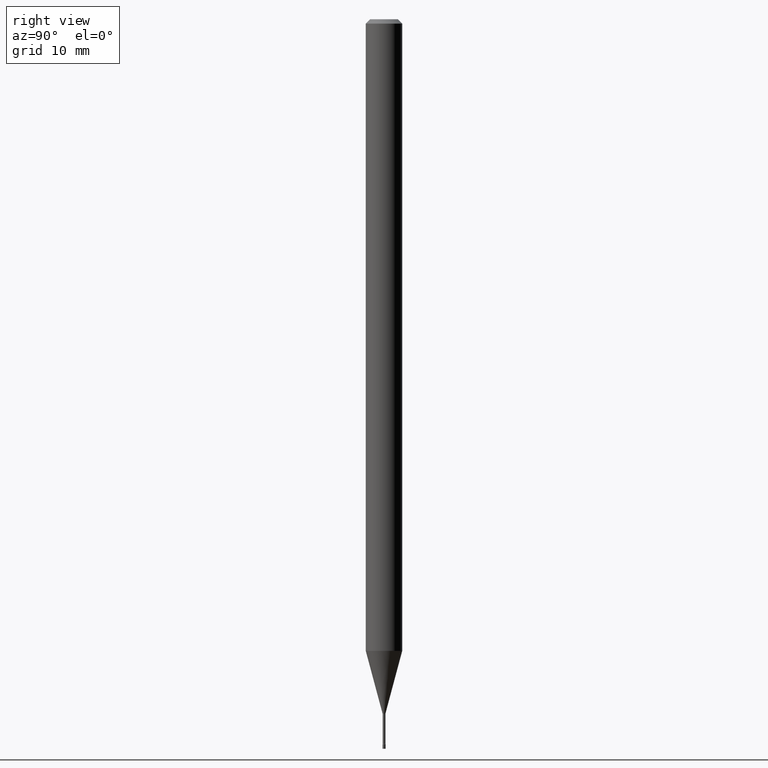
[diagram: clean part render]
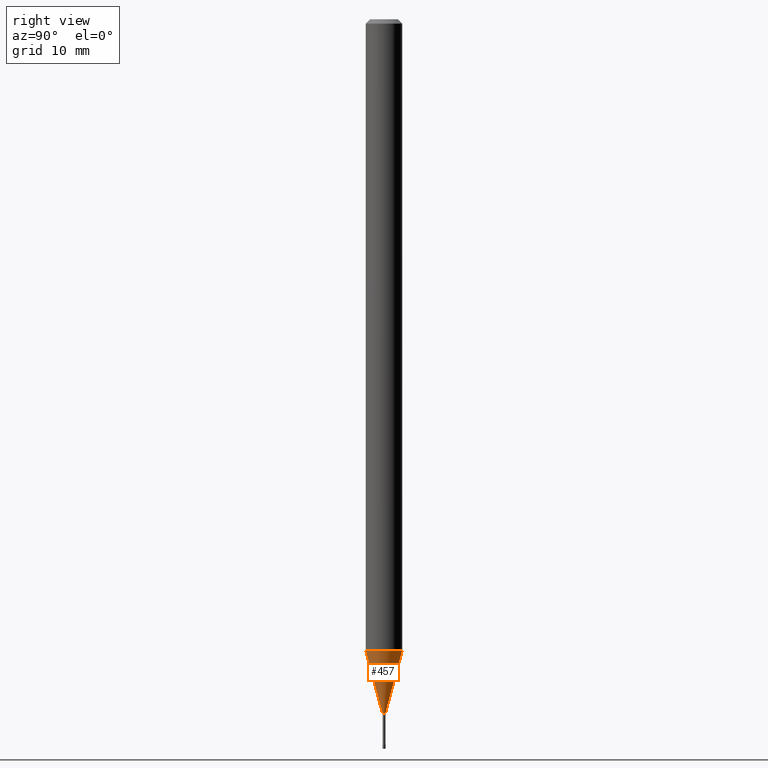
[diagram: same view with one face highlighted and labeled with its STEP entity id]
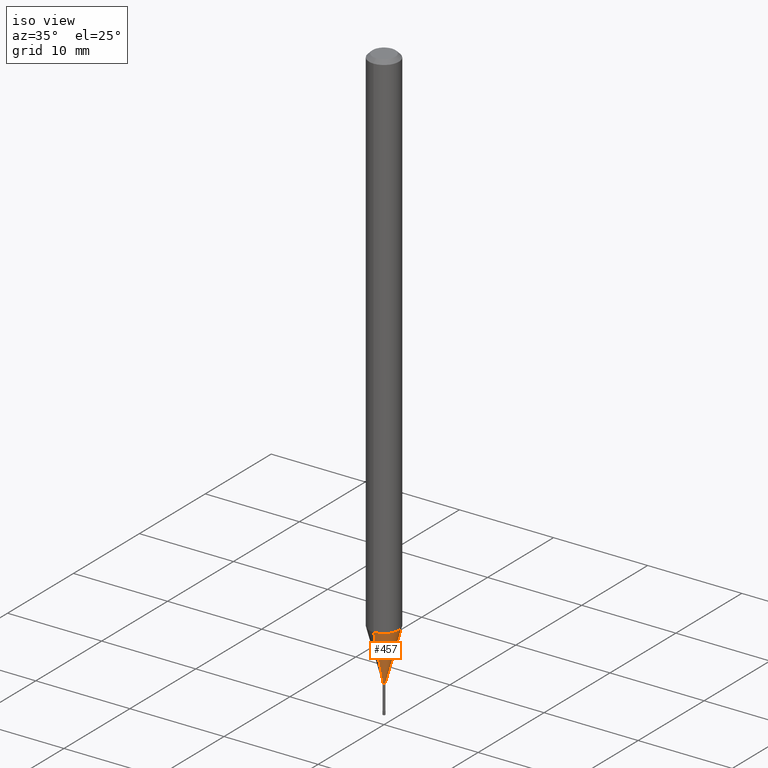
[diagram: same view with one face highlighted and labeled with its STEP entity id]
A machine part, right view. The second image highlights one B-rep face of the part: STEP entity #457.
A second angle (iso view) of the same face is appended — the face is thin or edge-on in the first view.
In plain terms, the highlighted conical surface has half-angle 15 deg.
Its self-contained STEP definition (entity closure, byte-faithful):
#2 = AXIS2_PLACEMENT_3D ( 'NONE', #79, #193, #4 ) ;
#4 = DIRECTION ( 'NONE',  ( -6.982962677686267499E-15, -1.000000000000000000, 0.000000000000000000 ) ) ;
#71 = EDGE_CURVE ( 'NONE', #107, #72, #111, .T. ) ;
#72 = VERTEX_POINT ( 'NONE', #519 ) ;
#79 = CARTESIAN_POINT ( 'NONE',  ( 5.812846922043767073E-29, -8.306938030458705660E-15, -2.378092501787273605 ) ) ;
#83 = CIRCLE ( 'NONE', #166, 0.005211112605663988095 ) ;
#84 = DIRECTION ( 'NONE',  ( -1.807323732225325801E-15, -0.2588190451025175753, 0.9659258262890690894 ) ) ;
#93 = CARTESIAN_POINT ( 'NONE',  ( 3.702718207188246555E-17, 0.005211112605655682239, -2.378092501787273605 ) ) ;
#97 = AXIS2_PLACEMENT_3D ( 'NONE', #391, #480, #430 ) ;
#99 = CARTESIAN_POINT ( 'NONE',  ( 2.405581959609991187E-16, 0.005211112605655682239, -2.378092501787273605 ) ) ;
#103 = CIRCLE ( 'NONE', #97, 0.06250000000000000000 ) ;
#107 = VERTEX_POINT ( 'NONE', #396 ) ;
#111 = LINE ( 'NONE', #234, #436 ) ;
#113 = CARTESIAN_POINT ( 'NONE',  ( 4.440892098501153712E-16, 0.06249999999999242967, -2.164287463322519756 ) ) ;
#131 = DIRECTION ( 'NONE',  ( 1.839019923739595977E-15, 0.2588190451025243477, 0.9659258262890673130 ) ) ;
#136 = VECTOR ( 'NONE', #131, 39.37007874015748143 ) ;
#161 = CARTESIAN_POINT ( 'NONE',  ( 5.812846922043767073E-29, -8.306938030458705660E-15, -2.378092501787273605 ) ) ;
#166 = AXIS2_PLACEMENT_3D ( 'NONE', #161, #186, #273 ) ;
#186 = DIRECTION ( 'NONE',  ( -2.444331714462359119E-29, 3.493109718909404657E-15, 1.000000000000000000 ) ) ;
#190 = ORIENTED_EDGE ( 'NONE', *, *, #71, .F. ) ;
#193 = DIRECTION ( 'NONE',  ( -2.444331714462359119E-29, 3.493109718909404657E-15, 1.000000000000000000 ) ) ;
#216 = EDGE_CURVE ( 'NONE', #381, #456, #500, .T. ) ;
#225 = ORIENTED_EDGE ( 'NONE', *, *, #416, .F. ) ;
#234 = CARTESIAN_POINT ( 'NONE',  ( -3.638900483451393504E-17, -0.005211112605672294819, -2.378092501787273605 ) ) ;
#273 = DIRECTION ( 'NONE',  ( -6.982962677686267499E-15, -1.000000000000000000, 0.000000000000000000 ) ) ;
#315 = FACE_OUTER_BOUND ( 'NONE', #316, .T. ) ;
#316 = EDGE_LOOP ( 'NONE', ( #347, #332, #225, #190 ) ) ;
#332 = ORIENTED_EDGE ( 'NONE', *, *, #216, .T. ) ;
#347 = ORIENTED_EDGE ( 'NONE', *, *, #463, .T. ) ;
#381 = VERTEX_POINT ( 'NONE', #99 ) ;
#388 = CONICAL_SURFACE ( 'NONE', #2, 0.005211112605663988095, 0.2617993877991496299 ) ;
#391 = CARTESIAN_POINT ( 'NONE',  ( 5.290236485812523479E-29, -7.560093572645674107E-15, -2.164287463322519312 ) ) ;
#396 = CARTESIAN_POINT ( 'NONE',  ( -3.638900483451393504E-17, -0.005211112605672294819, -2.378092501787273605 ) ) ;
#416 = EDGE_CURVE ( 'NONE', #72, #456, #103, .T. ) ;
#430 = DIRECTION ( 'NONE',  ( -6.982962677686265922E-15, -1.000000000000000000, 4.370956789862821150E-15 ) ) ;
#436 = VECTOR ( 'NONE', #84, 39.37007874015748854 ) ;
#456 = VERTEX_POINT ( 'NONE', #113 ) ;
#457 = ADVANCED_FACE ( 'NONE', ( #315 ), #388, .T. ) ;
#463 = EDGE_CURVE ( 'NONE', #107, #381, #83, .T. ) ;
#480 = DIRECTION ( 'NONE',  ( -2.444331714462359119E-29, 3.493109718909404657E-15, 1.000000000000000000 ) ) ;
#500 = LINE ( 'NONE', #93, #136 ) ;
#519 = CARTESIAN_POINT ( 'NONE',  ( -4.364351673553388650E-16, -0.06250000000000757727, -2.164287463322519312 ) ) ;